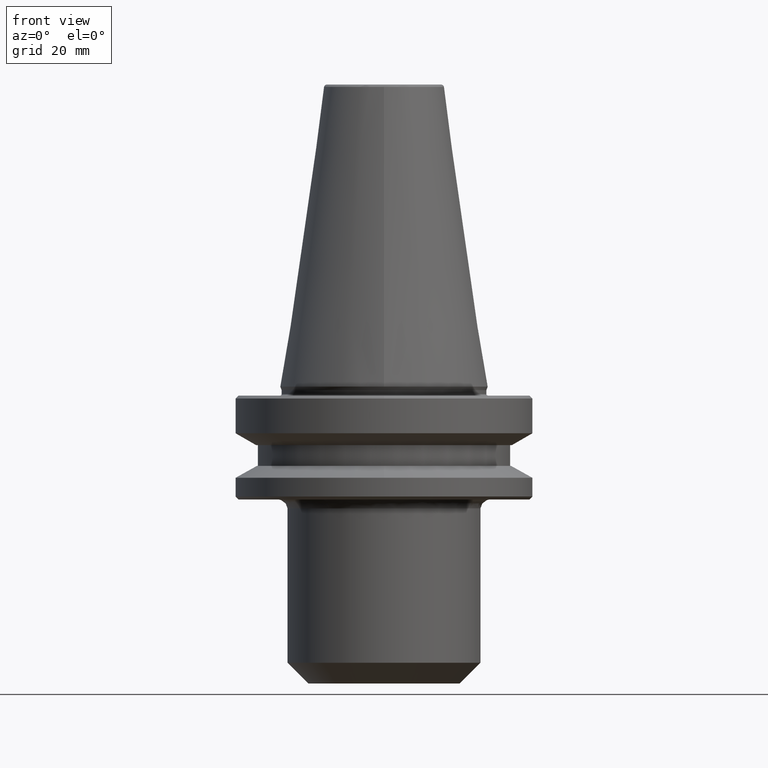
[diagram: clean part render]
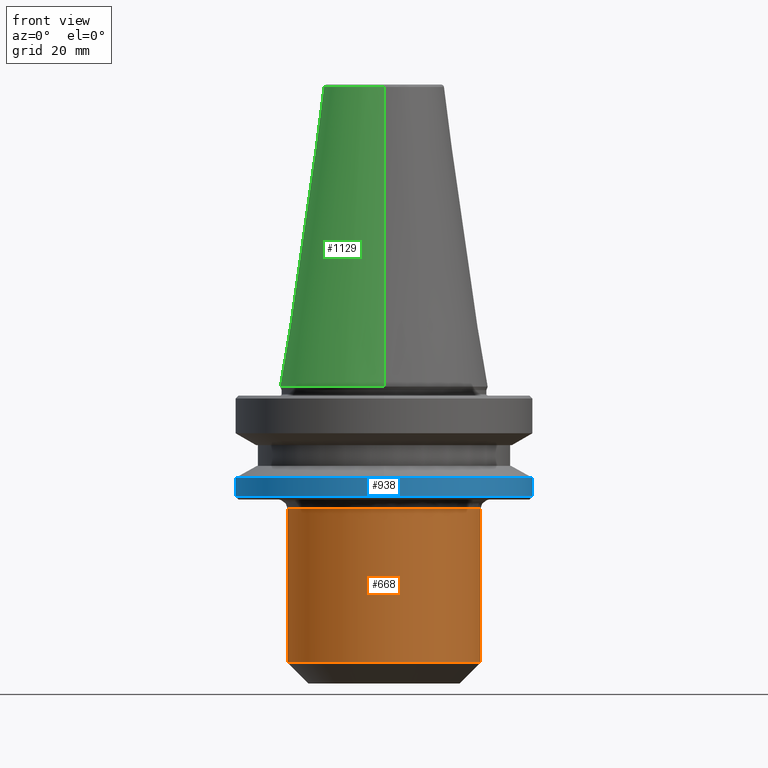
[diagram: same view with three faces highlighted in distinct colors, each labeled with its STEP entity id]
A machine part, front view with three faces highlighted in distinct colors.
Their STEP definitions:

[orange] entity #668 — the highlighted cylindrical surface (partial cylindrical patch) has radius 32.5 mm, axis along (0, 0, 1).
#55 = DIRECTION ( 'NONE',  ( 1.000000000000000000, 0.0000000000000000000, 0.0000000000000000000 ) ) ;
#73 = VECTOR ( 'NONE', #917, 1000.000000000000000 ) ;
#77 = VERTEX_POINT ( 'NONE', #339 ) ;
#112 = LINE ( 'NONE', #606, #661 ) ;
#174 = CARTESIAN_POINT ( 'NONE',  ( -32.50000000000000000, 3.980102097228898600E-015, 0.0000000000000000000 ) ) ;
#241 = ORIENTED_EDGE ( 'NONE', *, *, #1175, .T. ) ;
#294 = EDGE_LOOP ( 'NONE', ( #1243, #1279, #1248, #241 ) ) ;
#301 = DIRECTION ( 'NONE',  ( 0.0000000000000000000, 0.0000000000000000000, 1.000000000000000000 ) ) ;
#319 = FACE_OUTER_BOUND ( 'NONE', #294, .T. ) ;
#339 = CARTESIAN_POINT ( 'NONE',  ( -32.50000000000000000, 3.980102097228898600E-015, -92.99999999999991500 ) ) ;
#429 = CARTESIAN_POINT ( 'NONE',  ( 0.0000000000000000000, 0.0000000000000000000, -41.00000000000000700 ) ) ;
#534 = DIRECTION ( 'NONE',  ( 1.000000000000000000, 0.0000000000000000000, 0.0000000000000000000 ) ) ;
#547 = EDGE_CURVE ( 'NONE', #77, #791, #746, .T. ) ;
#549 = DIRECTION ( 'NONE',  ( 0.0000000000000000000, 0.0000000000000000000, 1.000000000000000000 ) ) ;
#606 = CARTESIAN_POINT ( 'NONE',  ( 32.50000000000000000, 0.0000000000000000000, 0.0000000000000000000 ) ) ;
#632 = EDGE_CURVE ( 'NONE', #791, #1007, #112, .T. ) ;
#641 = EDGE_CURVE ( 'NONE', #77, #1128, #906, .T. ) ;
#661 = VECTOR ( 'NONE', #1305, 1000.000000000000000 ) ;
#668 = ADVANCED_FACE ( 'NONE', ( #319 ), #840, .T. ) ;
#679 = CARTESIAN_POINT ( 'NONE',  ( 32.50000000000000700, 0.0000000000000000000, -41.00000000000000700 ) ) ;
#715 = CARTESIAN_POINT ( 'NONE',  ( 0.0000000000000000000, 0.0000000000000000000, 0.0000000000000000000 ) ) ;
#716 = AXIS2_PLACEMENT_3D ( 'NONE', #429, #1136, #534 ) ;
#746 = CIRCLE ( 'NONE', #1298, 32.50000000000000000 ) ;
#791 = VERTEX_POINT ( 'NONE', #1032 ) ;
#840 = CYLINDRICAL_SURFACE ( 'NONE', #1155, 32.50000000000000000 ) ;
#906 = LINE ( 'NONE', #174, #73 ) ;
#917 = DIRECTION ( 'NONE',  ( 0.0000000000000000000, 0.0000000000000000000, 1.000000000000000000 ) ) ;
#1007 = VERTEX_POINT ( 'NONE', #679 ) ;
#1028 = CARTESIAN_POINT ( 'NONE',  ( -32.50000000000000700, 3.980102097228899400E-015, -41.00000000000000700 ) ) ;
#1032 = CARTESIAN_POINT ( 'NONE',  ( 32.50000000000000000, 0.0000000000000000000, -92.99999999999991500 ) ) ;
#1086 = CIRCLE ( 'NONE', #716, 32.50000000000000700 ) ;
#1128 = VERTEX_POINT ( 'NONE', #1028 ) ;
#1136 = DIRECTION ( 'NONE',  ( -0.0000000000000000000, -0.0000000000000000000, -1.000000000000000000 ) ) ;
#1149 = CARTESIAN_POINT ( 'NONE',  ( 0.0000000000000000000, 0.0000000000000000000, -92.99999999999991500 ) ) ;
#1155 = AXIS2_PLACEMENT_3D ( 'NONE', #715, #301, #55 ) ;
#1175 = EDGE_CURVE ( 'NONE', #1007, #1128, #1086, .T. ) ;
#1243 = ORIENTED_EDGE ( 'NONE', *, *, #641, .F. ) ;
#1248 = ORIENTED_EDGE ( 'NONE', *, *, #632, .T. ) ;
#1250 = DIRECTION ( 'NONE',  ( 1.000000000000000000, 0.0000000000000000000, 0.0000000000000000000 ) ) ;
#1279 = ORIENTED_EDGE ( 'NONE', *, *, #547, .T. ) ;
#1298 = AXIS2_PLACEMENT_3D ( 'NONE', #1149, #549, #1250 ) ;
#1305 = DIRECTION ( 'NONE',  ( 0.0000000000000000000, 0.0000000000000000000, 1.000000000000000000 ) ) ;

[blue] entity #938 — the highlighted cylindrical surface (partial cylindrical patch) has radius 50 mm, axis along (0, 0, 1).
#14 = CIRCLE ( 'NONE', #723, 50.00000000000000000 ) ;
#66 = AXIS2_PLACEMENT_3D ( 'NONE', #816, #812, #488 ) ;
#113 = CARTESIAN_POINT ( 'NONE',  ( -50.00000000000000000, 6.123233995736766100E-015, -37.00000000000002100 ) ) ;
#116 = EDGE_CURVE ( 'NONE', #325, #788, #459, .T. ) ;
#153 = AXIS2_PLACEMENT_3D ( 'NONE', #1301, #1292, #470 ) ;
#178 = EDGE_CURVE ( 'NONE', #571, #1355, #825, .T. ) ;
#225 = CARTESIAN_POINT ( 'NONE',  ( 6.123233995736766100E-015, -50.00000000000000000, -30.69977999677324500 ) ) ;
#254 = DIRECTION ( 'NONE',  ( 0.0000000000000000000, 0.0000000000000000000, 1.000000000000000000 ) ) ;
#259 = EDGE_CURVE ( 'NONE', #325, #1274, #1344, .T. ) ;
#263 = EDGE_CURVE ( 'NONE', #1274, #1355, #810, .T. ) ;
#325 = VERTEX_POINT ( 'NONE', #113 ) ;
#347 = DIRECTION ( 'NONE',  ( 0.0000000000000000000, 0.0000000000000000000, 1.000000000000000000 ) ) ;
#364 = ORIENTED_EDGE ( 'NONE', *, *, #116, .F. ) ;
#398 = CARTESIAN_POINT ( 'NONE',  ( 0.0000000000000000000, 0.0000000000000000000, -30.69977999677324500 ) ) ;
#449 = CARTESIAN_POINT ( 'NONE',  ( 50.00000000000000000, 0.0000000000000000000, -30.69977999677324500 ) ) ;
#459 = LINE ( 'NONE', #987, #527 ) ;
#470 = DIRECTION ( 'NONE',  ( -1.000000000000000000, 0.0000000000000000000, 0.0000000000000000000 ) ) ;
#488 = DIRECTION ( 'NONE',  ( 1.000000000000000000, 0.0000000000000000000, 0.0000000000000000000 ) ) ;
#509 = EDGE_CURVE ( 'NONE', #788, #571, #14, .T. ) ;
#527 = VECTOR ( 'NONE', #713, 1000.000000000000000 ) ;
#565 = VECTOR ( 'NONE', #254, 1000.000000000000000 ) ;
#571 = VERTEX_POINT ( 'NONE', #225 ) ;
#598 = ORIENTED_EDGE ( 'NONE', *, *, #263, .T. ) ;
#713 = DIRECTION ( 'NONE',  ( 0.0000000000000000000, 0.0000000000000000000, 1.000000000000000000 ) ) ;
#723 = AXIS2_PLACEMENT_3D ( 'NONE', #398, #912, #909 ) ;
#748 = FACE_OUTER_BOUND ( 'NONE', #891, .T. ) ;
#788 = VERTEX_POINT ( 'NONE', #1364 ) ;
#810 = LINE ( 'NONE', #817, #565 ) ;
#812 = DIRECTION ( 'NONE',  ( 0.0000000000000000000, 0.0000000000000000000, 1.000000000000000000 ) ) ;
#816 = CARTESIAN_POINT ( 'NONE',  ( 0.0000000000000000000, 0.0000000000000000000, -37.00000000000002100 ) ) ;
#817 = CARTESIAN_POINT ( 'NONE',  ( 50.00000000000000000, 0.0000000000000000000, 124.5046326327850600 ) ) ;
#825 = CIRCLE ( 'NONE', #153, 50.00000000000000000 ) ;
#891 = EDGE_LOOP ( 'NONE', ( #364, #1371, #598, #1225, #899 ) ) ;
#892 = AXIS2_PLACEMENT_3D ( 'NONE', #1061, #347, #974 ) ;
#899 = ORIENTED_EDGE ( 'NONE', *, *, #509, .F. ) ;
#909 = DIRECTION ( 'NONE',  ( -1.000000000000000000, 0.0000000000000000000, 0.0000000000000000000 ) ) ;
#912 = DIRECTION ( 'NONE',  ( -0.0000000000000000000, -0.0000000000000000000, 1.000000000000000000 ) ) ;
#938 = ADVANCED_FACE ( 'NONE', ( #748 ), #1209, .T. ) ;
#974 = DIRECTION ( 'NONE',  ( 1.000000000000000000, 0.0000000000000000000, 0.0000000000000000000 ) ) ;
#987 = CARTESIAN_POINT ( 'NONE',  ( -50.00000000000000000, 6.123233995736766100E-015, 124.5046326327850600 ) ) ;
#1061 = CARTESIAN_POINT ( 'NONE',  ( 0.0000000000000000000, 0.0000000000000000000, 124.5046326327850600 ) ) ;
#1209 = CYLINDRICAL_SURFACE ( 'NONE', #892, 50.00000000000000000 ) ;
#1225 = ORIENTED_EDGE ( 'NONE', *, *, #178, .F. ) ;
#1274 = VERTEX_POINT ( 'NONE', #1356 ) ;
#1292 = DIRECTION ( 'NONE',  ( -0.0000000000000000000, -0.0000000000000000000, 1.000000000000000000 ) ) ;
#1301 = CARTESIAN_POINT ( 'NONE',  ( 0.0000000000000000000, 0.0000000000000000000, -30.69977999677324500 ) ) ;
#1344 = CIRCLE ( 'NONE', #66, 50.00000000000000000 ) ;
#1355 = VERTEX_POINT ( 'NONE', #449 ) ;
#1356 = CARTESIAN_POINT ( 'NONE',  ( 50.00000000000000000, 0.0000000000000000000, -37.00000000000002100 ) ) ;
#1364 = CARTESIAN_POINT ( 'NONE',  ( -50.00000000000000000, 6.123233995736766100E-015, -30.69977999677324500 ) ) ;
#1371 = ORIENTED_EDGE ( 'NONE', *, *, #259, .T. ) ;

[green] entity #1129 — the highlighted conical surface has half-angle 8.297 deg.
#30 = DIRECTION ( 'NONE',  ( -1.000000000000000000, 0.0000000000000000000, 0.0000000000000000000 ) ) ;
#43 = DIRECTION ( 'NONE',  ( -0.0000000000000000000, -0.0000000000000000000, 1.000000000000000000 ) ) ;
#56 = FACE_OUTER_BOUND ( 'NONE', #847, .T. ) ;
#59 = VERTEX_POINT ( 'NONE', #725 ) ;
#89 = VECTOR ( 'NONE', #1359, 1000.000000000000000 ) ;
#101 = AXIS2_PLACEMENT_3D ( 'NONE', #757, #103, #860 ) ;
#102 = ORIENTED_EDGE ( 'NONE', *, *, #535, .T. ) ;
#103 = DIRECTION ( 'NONE',  ( 0.0000000000000000000, 0.0000000000000000000, -1.000000000000000000 ) ) ;
#148 = ORIENTED_EDGE ( 'NONE', *, *, #543, .T. ) ;
#191 = DIRECTION ( 'NONE',  ( -0.0000000000000000000, -0.0000000000000000000, 1.000000000000000000 ) ) ;
#213 = DIRECTION ( 'NONE',  ( 0.0000000000000000000, 0.0000000000000000000, -1.000000000000000000 ) ) ;
#220 = CARTESIAN_POINT ( 'NONE',  ( 4.277078946022130900E-015, -34.92499999999999700, 0.0000000000000000000 ) ) ;
#249 = CIRCLE ( 'NONE', #1277, 34.92499999999999700 ) ;
#262 = VERTEX_POINT ( 'NONE', #1058 ) ;
#287 = CIRCLE ( 'NONE', #101, 20.20381605152244500 ) ;
#292 = CARTESIAN_POINT ( 'NONE',  ( 0.0000000000000000000, 20.20381605152244500, 100.9443082272672700 ) ) ;
#334 = ORIENTED_EDGE ( 'NONE', *, *, #623, .T. ) ;
#353 = AXIS2_PLACEMENT_3D ( 'NONE', #530, #213, #30 ) ;
#362 = CIRCLE ( 'NONE', #353, 20.20381605152244500 ) ;
#419 = DIRECTION ( 'NONE',  ( 0.0000000000000000000, 2.205789485339712300E-032, -1.000000000000000000 ) ) ;
#427 = VERTEX_POINT ( 'NONE', #292 ) ;
#432 = EDGE_CURVE ( 'NONE', #958, #427, #362, .T. ) ;
#528 = VERTEX_POINT ( 'NONE', #220 ) ;
#530 = CARTESIAN_POINT ( 'NONE',  ( 0.0000000000000000000, 0.0000000000000000000, 100.9443082272672700 ) ) ;
#535 = EDGE_CURVE ( 'NONE', #262, #958, #287, .T. ) ;
#543 = EDGE_CURVE ( 'NONE', #427, #59, #718, .T. ) ;
#582 = LINE ( 'NONE', #645, #794 ) ;
#623 = EDGE_CURVE ( 'NONE', #59, #1138, #249, .T. ) ;
#645 = CARTESIAN_POINT ( 'NONE',  ( 4.277078946022130900E-015, -34.92499999999999700, -1.235024670767087800E-014 ) ) ;
#706 = CARTESIAN_POINT ( 'NONE',  ( 0.0000000000000000000, 0.0000000000000000000, 0.0000000000000000000 ) ) ;
#718 = LINE ( 'NONE', #1245, #89 ) ;
#721 = EDGE_CURVE ( 'NONE', #1138, #528, #1157, .T. ) ;
#725 = CARTESIAN_POINT ( 'NONE',  ( 0.0000000000000000000, 34.92499999999999700, 0.0000000000000000000 ) ) ;
#739 = CARTESIAN_POINT ( 'NONE',  ( -34.92499999999999700, 4.277078946022130900E-015, 0.0000000000000000000 ) ) ;
#757 = CARTESIAN_POINT ( 'NONE',  ( 0.0000000000000000000, 0.0000000000000000000, 100.9443082272672700 ) ) ;
#767 = AXIS2_PLACEMENT_3D ( 'NONE', #1034, #419, #836 ) ;
#794 = VECTOR ( 'NONE', #947, 1000.000000000000000 ) ;
#811 = DIRECTION ( 'NONE',  ( -1.000000000000000000, -8.881784197001252300E-016, -3.611427007686981100E-016 ) ) ;
#829 = CARTESIAN_POINT ( 'NONE',  ( 0.0000000000000000000, 0.0000000000000000000, 0.0000000000000000000 ) ) ;
#836 = DIRECTION ( 'NONE',  ( 0.0000000000000000000, 1.000000000000000000, 4.411578970679424000E-032 ) ) ;
#847 = EDGE_LOOP ( 'NONE', ( #991, #102, #932, #148, #334, #1081 ) ) ;
#860 = DIRECTION ( 'NONE',  ( -1.000000000000000000, 0.0000000000000000000, 0.0000000000000000000 ) ) ;
#931 = DIRECTION ( 'NONE',  ( -1.000000000000000000, 0.0000000000000000000, -3.611427007686981100E-016 ) ) ;
#932 = ORIENTED_EDGE ( 'NONE', *, *, #432, .T. ) ;
#947 = DIRECTION ( 'NONE',  ( 1.767266086135278000E-017, -0.1443082272673000500, -0.9895327864921754600 ) ) ;
#958 = VERTEX_POINT ( 'NONE', #980 ) ;
#980 = CARTESIAN_POINT ( 'NONE',  ( -20.20381605152244500, 2.474253865805887700E-015, 100.9443082272672700 ) ) ;
#991 = ORIENTED_EDGE ( 'NONE', *, *, #1196, .F. ) ;
#1034 = CARTESIAN_POINT ( 'NONE',  ( 0.0000000000000000000, 0.0000000000000000000, -1.235024670767087600E-014 ) ) ;
#1058 = CARTESIAN_POINT ( 'NONE',  ( 3.375666405914009500E-015, -20.20381605152244500, 100.9443082272672700 ) ) ;
#1081 = ORIENTED_EDGE ( 'NONE', *, *, #721, .T. ) ;
#1129 = ADVANCED_FACE ( 'NONE', ( #56 ), #1357, .T. ) ;
#1138 = VERTEX_POINT ( 'NONE', #739 ) ;
#1145 = AXIS2_PLACEMENT_3D ( 'NONE', #829, #191, #931 ) ;
#1157 = CIRCLE ( 'NONE', #1145, 34.92499999999999700 ) ;
#1196 = EDGE_CURVE ( 'NONE', #262, #528, #582, .T. ) ;
#1245 = CARTESIAN_POINT ( 'NONE',  ( 0.0000000000000000000, 34.92499999999999700, -1.235024670767087400E-014 ) ) ;
#1277 = AXIS2_PLACEMENT_3D ( 'NONE', #706, #43, #811 ) ;
#1357 = CONICAL_SURFACE ( 'NONE', #767, 34.92499999999999700, 0.1448138465474120300 ) ;
#1359 = DIRECTION ( 'NONE',  ( 0.0000000000000000000, 0.1443082272673000500, -0.9895327864921754600 ) ) ;